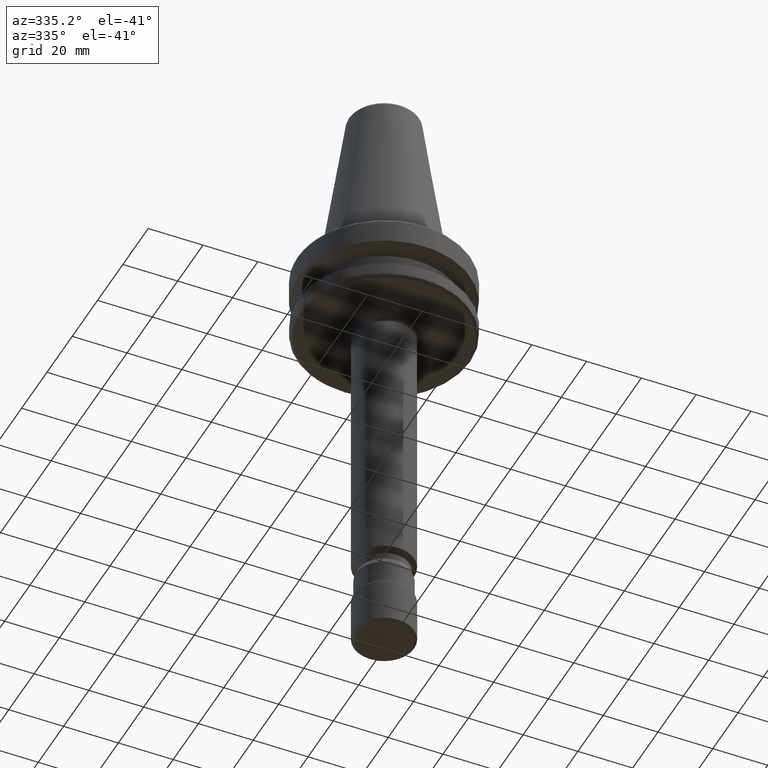
[diagram: clean part render]
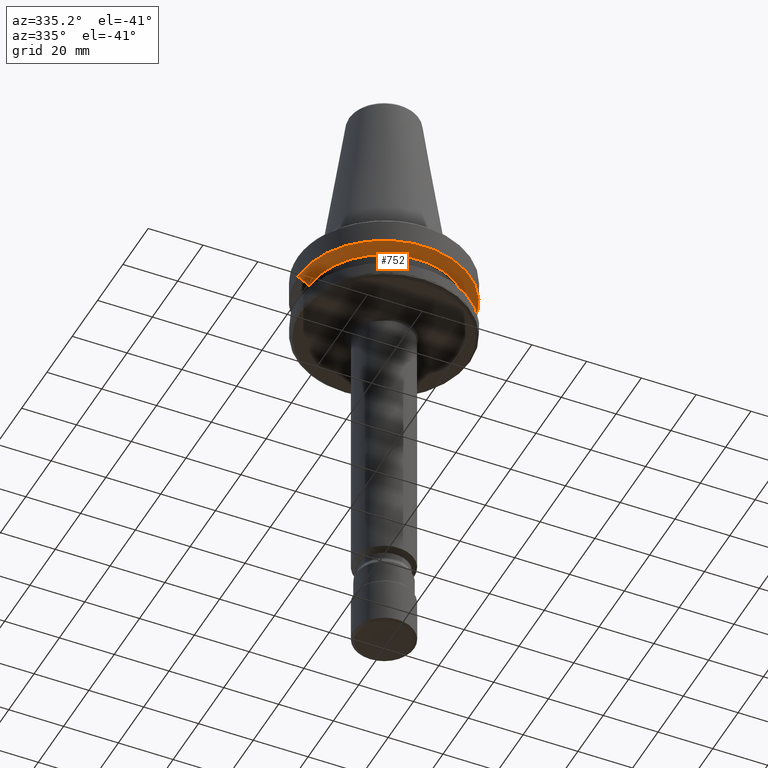
[diagram: same view with one face highlighted and labeled with its STEP entity id]
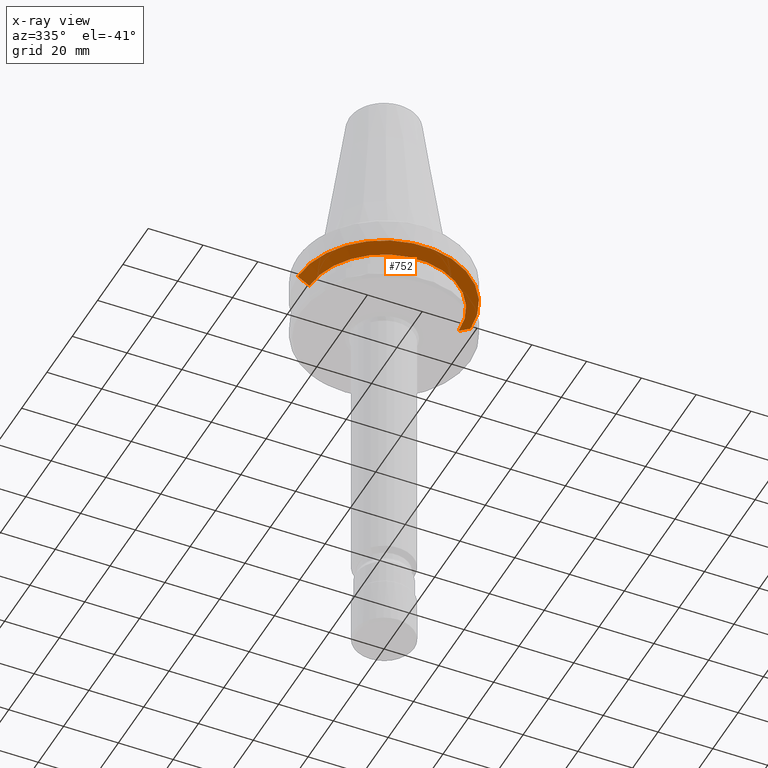
[diagram: x-ray of the same camera — body ghosted, the highlighted face saturated]
A machine part, auxiliary view. The second image highlights one B-rep face of the part: STEP entity #752.
The next image is the same camera in x-ray: the body ghosted, the highlighted face saturated — about 0% of this face is hidden behind the body in this view.
In plain terms, the highlighted conical surface has half-angle 60 deg.
Its self-contained STEP definition (entity closure, byte-faithful):
#28 = CARTESIAN_POINT ( 'NONE',  ( 0.0000000000000000000, 0.0000000000000000000, -11.62411723882629600 ) ) ;
#175 = EDGE_CURVE ( 'NONE', #1770, #543, #2132, .T. ) ;
#224 = CIRCLE ( 'NONE', #2550, 27.21164526232926300 ) ;
#233 = LINE ( 'NONE', #1312, #1031 ) ;
#385 = EDGE_CURVE ( 'NONE', #772, #1770, #233, .T. ) ;
#407 = CARTESIAN_POINT ( 'NONE',  ( -31.50000000000000000, 3.857637417314162700E-015, -11.62411723882629600 ) ) ;
#538 = ORIENTED_EDGE ( 'NONE', *, *, #385, .F. ) ;
#543 = VERTEX_POINT ( 'NONE', #1819 ) ;
#550 = EDGE_LOOP ( 'NONE', ( #538, #1362, #1029, #1043 ) ) ;
#576 = EDGE_CURVE ( 'NONE', #1985, #543, #1369, .T. ) ;
#616 = DIRECTION ( 'NONE',  ( 1.000000000000000000, 0.0000000000000000000, 0.0000000000000000000 ) ) ;
#720 = DIRECTION ( 'NONE',  ( -0.0000000000000000000, -0.0000000000000000000, 1.000000000000000000 ) ) ;
#752 = ADVANCED_FACE ( 'NONE', ( #1490 ), #1625, .T. ) ;
#772 = VERTEX_POINT ( 'NONE', #2834 ) ;
#830 = DIRECTION ( 'NONE',  ( -0.0000000000000000000, -0.0000000000000000000, 1.000000000000000000 ) ) ;
#870 = CARTESIAN_POINT ( 'NONE',  ( 0.0000000000000000000, 0.0000000000000000000, -11.62411723882629600 ) ) ;
#892 = DIRECTION ( 'NONE',  ( -0.0000000000000000000, -0.0000000000000000000, 1.000000000000000000 ) ) ;
#968 = DIRECTION ( 'NONE',  ( -0.8660254037844386000, 1.060575238724906800E-016, 0.5000000000000001100 ) ) ;
#1029 = ORIENTED_EDGE ( 'NONE', *, *, #576, .T. ) ;
#1031 = VECTOR ( 'NONE', #968, 1000.000000000000000 ) ;
#1043 = ORIENTED_EDGE ( 'NONE', *, *, #175, .F. ) ;
#1194 = DIRECTION ( 'NONE',  ( 1.000000000000000000, 0.0000000000000000000, 0.0000000000000000000 ) ) ;
#1312 = CARTESIAN_POINT ( 'NONE',  ( -31.50000000000000000, 3.857637417314162700E-015, -11.62411723882629600 ) ) ;
#1354 = VECTOR ( 'NONE', #2906, 1000.000000000000000 ) ;
#1362 = ORIENTED_EDGE ( 'NONE', *, *, #3510, .T. ) ;
#1369 = LINE ( 'NONE', #3478, #1354 ) ;
#1490 = FACE_OUTER_BOUND ( 'NONE', #550, .T. ) ;
#1625 = CONICAL_SURFACE ( 'NONE', #3425, 31.50000000000000000, 1.047197551196597600 ) ;
#1770 = VERTEX_POINT ( 'NONE', #407 ) ;
#1819 = CARTESIAN_POINT ( 'NONE',  ( 31.50000000000000000, 0.0000000000000000000, -11.62411723882629600 ) ) ;
#1985 = VERTEX_POINT ( 'NONE', #3112 ) ;
#2132 = CIRCLE ( 'NONE', #3558, 31.50000000000000000 ) ;
#2531 = CARTESIAN_POINT ( 'NONE',  ( 0.0000000000000000000, 0.0000000000000000000, -14.10000000100110300 ) ) ;
#2550 = AXIS2_PLACEMENT_3D ( 'NONE', #2531, #830, #2791 ) ;
#2791 = DIRECTION ( 'NONE',  ( 1.000000000000000000, 0.0000000000000000000, 0.0000000000000000000 ) ) ;
#2834 = CARTESIAN_POINT ( 'NONE',  ( -27.21164526232926300, 3.595051422159319400E-015, -14.10000000100110300 ) ) ;
#2906 = DIRECTION ( 'NONE',  ( 0.8660254037844386000, 0.0000000000000000000, 0.5000000000000001100 ) ) ;
#3112 = CARTESIAN_POINT ( 'NONE',  ( 27.21164526232926300, 0.0000000000000000000, -14.10000000100110300 ) ) ;
#3425 = AXIS2_PLACEMENT_3D ( 'NONE', #28, #892, #1194 ) ;
#3478 = CARTESIAN_POINT ( 'NONE',  ( 31.50000000000000000, 0.0000000000000000000, -11.62411723882629600 ) ) ;
#3510 = EDGE_CURVE ( 'NONE', #772, #1985, #224, .T. ) ;
#3558 = AXIS2_PLACEMENT_3D ( 'NONE', #870, #720, #616 ) ;